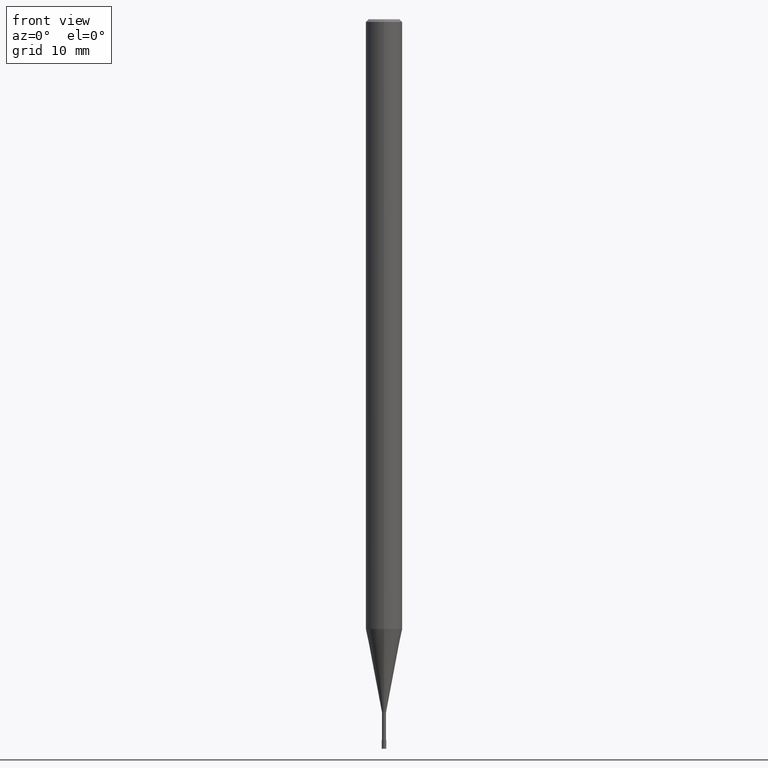
[diagram: clean part render]
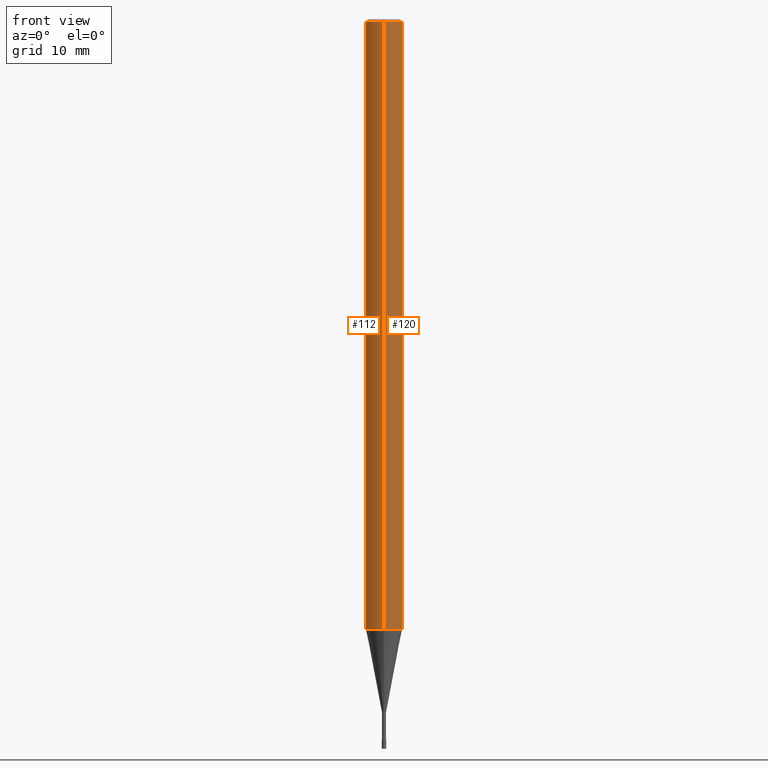
[diagram: same view with one multi-face feature highlighted, each face labeled with its STEP entity id]
A machine part, front view. The highlighted faces form ONE feature: a constant-radius fillet chain: 2 tangent blend faces with common blend radius 2 mm. The faces share edges in the B-rep.
Their STEP definitions:
[1] entity #112 (Cylinder):
#112=ADVANCED_FACE('',(#251),#252,.T.);
#116=VERTEX_POINT('',#257);
#130=VERTEX_POINT('',#276);
#142=EDGE_CURVE('',#190,#186,#289,.T.);
#158=EDGE_CURVE('',#130,#190,#306,.T.);
#168=EDGE_CURVE('',#130,#116,#318,.T.);
#186=VERTEX_POINT('',#338);
#190=VERTEX_POINT('',#342);
#206=EDGE_CURVE('',#186,#116,#359,.T.);
#251=FACE_OUTER_BOUND('',#402,.T.);
#252=CYLINDRICAL_SURFACE('',#403,2.0);
#257=CARTESIAN_POINT('',(0.0,2.0,-66.868));
#276=CARTESIAN_POINT('',(2.44921270764475E-016,-2.0,-66.868));
#289=CIRCLE('',#444,2.0);
#306=LINE('',#468,#469);
#318=CIRCLE('',#484,2.0);
#338=CARTESIAN_POINT('',(0.0,2.0,-0.299999999999997));
#342=CARTESIAN_POINT('',(2.44921270764475E-016,-2.0,-0.299999999999997));
#359=LINE('',#537,#538);
#402=EDGE_LOOP('',(#575,#576,#577,#578));
#403=AXIS2_PLACEMENT_3D('',#579,#580,#581);
#444=AXIS2_PLACEMENT_3D('',#630,#631,#632);
#468=CARTESIAN_POINT('',(2.44921270764475E-016,-2.0,-33.584));
#469=VECTOR('',#653,1.0);
#484=AXIS2_PLACEMENT_3D('',#671,#672,#673);
#537=CARTESIAN_POINT('',(-2.44921270764475E-016,2.0,-33.584));
#538=VECTOR('',#713,1.0);
#575=ORIENTED_EDGE('',*,*,#206,.T.);
#576=ORIENTED_EDGE('',*,*,#168,.F.);
#577=ORIENTED_EDGE('',*,*,#158,.T.);
#578=ORIENTED_EDGE('',*,*,#142,.T.);
#579=CARTESIAN_POINT('',(0.0,0.0,-33.584));
#580=DIRECTION('',(-0.0,-0.0,1.0));
#581=DIRECTION('',(0.0,1.0,0.0));
#630=CARTESIAN_POINT('',(0.0,0.0,-0.299999999999997));
#631=DIRECTION('',(0.0,0.0,-1.0));
#632=DIRECTION('',(0.0,1.0,0.0));
#653=DIRECTION('',(-0.0,-0.0,1.0));
#671=CARTESIAN_POINT('',(0.0,0.0,-66.868));
#672=DIRECTION('',(0.0,0.0,-1.0));
#673=DIRECTION('',(0.0,1.0,0.0));
#713=DIRECTION('',(0.0,0.0,-1.0));
[2] entity #120 (Cylinder):
#98=EDGE_CURVE('',#116,#130,#235,.T.);
#116=VERTEX_POINT('',#257);
#120=ADVANCED_FACE('',(#261),#262,.T.);
#130=VERTEX_POINT('',#276);
#158=EDGE_CURVE('',#130,#190,#306,.T.);
#186=VERTEX_POINT('',#338);
#190=VERTEX_POINT('',#342);
#204=EDGE_CURVE('',#186,#190,#357,.T.);
#206=EDGE_CURVE('',#186,#116,#359,.T.);
#235=CIRCLE('',#384,2.0);
#257=CARTESIAN_POINT('',(0.0,2.0,-66.868));
#261=FACE_OUTER_BOUND('',#412,.T.);
#262=CYLINDRICAL_SURFACE('',#413,2.0);
#276=CARTESIAN_POINT('',(2.44921270764475E-016,-2.0,-66.868));
#306=LINE('',#468,#469);
#338=CARTESIAN_POINT('',(0.0,2.0,-0.299999999999997));
#342=CARTESIAN_POINT('',(2.44921270764475E-016,-2.0,-0.299999999999997));
#357=CIRCLE('',#534,2.0);
#359=LINE('',#537,#538);
#384=AXIS2_PLACEMENT_3D('',#551,#552,#553);
#412=EDGE_LOOP('',(#591,#592,#593,#594));
#413=AXIS2_PLACEMENT_3D('',#595,#596,#597);
#468=CARTESIAN_POINT('',(2.44921270764475E-016,-2.0,-33.584));
#469=VECTOR('',#653,1.0);
#534=AXIS2_PLACEMENT_3D('',#710,#711,#712);
#537=CARTESIAN_POINT('',(-2.44921270764475E-016,2.0,-33.584));
#538=VECTOR('',#713,1.0);
#551=CARTESIAN_POINT('',(0.0,0.0,-66.868));
#552=DIRECTION('',(0.0,0.0,-1.0));
#553=DIRECTION('',(0.0,1.0,0.0));
#591=ORIENTED_EDGE('',*,*,#206,.F.);
#592=ORIENTED_EDGE('',*,*,#204,.T.);
#593=ORIENTED_EDGE('',*,*,#158,.F.);
#594=ORIENTED_EDGE('',*,*,#98,.F.);
#595=CARTESIAN_POINT('',(0.0,0.0,-33.584));
#596=DIRECTION('',(-0.0,-0.0,1.0));
#597=DIRECTION('',(0.0,1.0,0.0));
#653=DIRECTION('',(-0.0,-0.0,1.0));
#710=CARTESIAN_POINT('',(0.0,0.0,-0.299999999999997));
#711=DIRECTION('',(0.0,0.0,-1.0));
#712=DIRECTION('',(0.0,1.0,0.0));
#713=DIRECTION('',(0.0,0.0,-1.0));